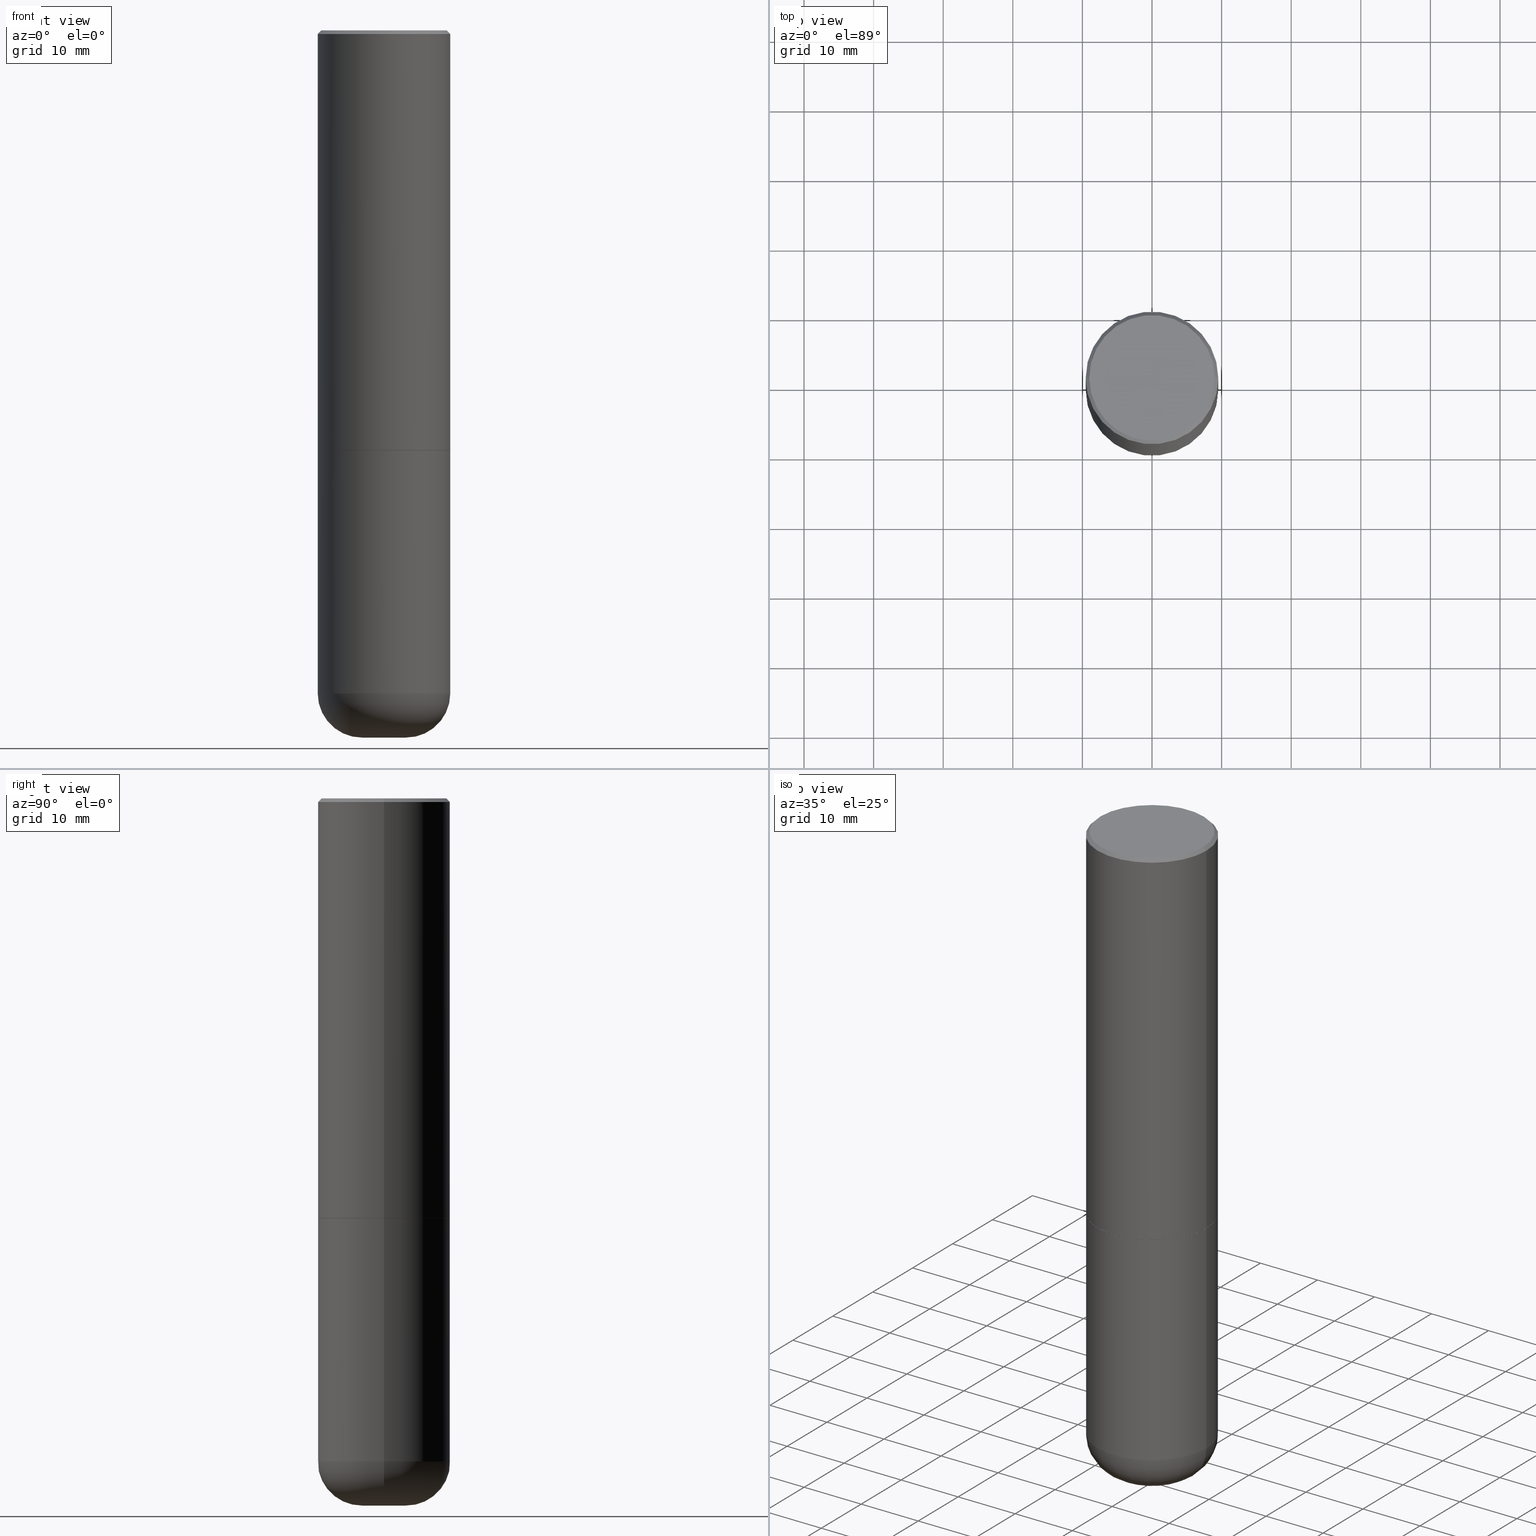
[diagram: canonical four-view strip — front | top / right | iso, engineering-drawing reading convention]
A machine part, canonical four-view strip (front | top / right | iso — engineering-drawing reading convention). The complete STEP part file that produces these views, byte-faithful:
ISO-10303-21;
HEADER;
FILE_DESCRIPTION (( 'STEP AP203' ),
    '1' );
FILE_NAME ('35634.STEP',
    '2022-11-02T20:31:57',
    ( '' ),
    ( '' ),
    'SwSTEP 2.0',
    'SolidWorks 2022',
    '' );
FILE_SCHEMA (( 'CONFIG_CONTROL_DESIGN' ));
ENDSEC;

DATA;
#1 = DIRECTION ( 'NONE',  ( -1.000000000000000000, 6.982962677686260400E-15, 0.000000000000000000 ) ) ;
#2 = APPROVAL_DATE_TIME ( #310, #217 ) ;
#3 = ORIENTED_EDGE ( 'NONE', *, *, #355, .T. ) ;
#4 = CONICAL_SURFACE ( 'NONE', #179, 0.3749999999999991673, 0.7853981633974445042 ) ;
#5 = ORIENTED_EDGE ( 'NONE', *, *, #201, .T. ) ;
#6 = ORIENTED_EDGE ( 'NONE', *, *, #381, .F. ) ;
#7 = CC_DESIGN_APPROVAL ( #312, ( #264 ) ) ;
#8 = FACE_OUTER_BOUND ( 'NONE', #154, .T. ) ;
#9 = AXIS2_PLACEMENT_3D ( 'NONE', #378, #37, #445 ) ;
#10 = PERSON_AND_ORGANIZATION ( #182, #33 ) ;
#11 = ORIENTED_EDGE ( 'NONE', *, *, #36, .F. ) ;
#12 = LINE ( 'NONE', #265, #234 ) ;
#13 = ORIENTED_EDGE ( 'NONE', *, *, #488, .T. ) ;
#14 = CC_DESIGN_PERSON_AND_ORGANIZATION_ASSIGNMENT ( #347, #180, ( #262 ) ) ;
#15 = DIRECTION ( 'NONE',  ( -0.7071067811864267805, 7.493145998869918709E-15, 0.7071067811866682540 ) ) ;
#16 = DIRECTION ( 'NONE',  ( -2.445468806185136597E-29, 3.491481338843145583E-15, 1.000000000000000000 ) ) ;
#17 = PRODUCT_DEFINITION_FORMATION_WITH_SPECIFIED_SOURCE ( 'ANY', '', #262, .NOT_KNOWN. ) ;
#18 = AXIS2_PLACEMENT_3D ( 'NONE', #294, #44, #419 ) ;
#19 = VERTEX_POINT ( 'NONE', #246 ) ;
#20 = DIRECTION ( 'NONE',  ( -6.982962677686266711E-15, -1.000000000000000000, 3.491481338843145583E-15 ) ) ;
#21 = ORIENTED_EDGE ( 'NONE', *, *, #349, .F. ) ;
#22 = ORIENTED_EDGE ( 'NONE', *, *, #169, .T. ) ;
#23 = DIRECTION ( 'NONE',  ( 2.445468806185136597E-29, -3.491481338843145583E-15, -1.000000000000000000 ) ) ;
#24 = ORIENTED_EDGE ( 'NONE', *, *, #59, .T. ) ;
#25 = EDGE_LOOP ( 'NONE', ( #311, #475, #198, #471 ) ) ;
#26 = DIRECTION ( 'NONE',  ( -2.438088387897960049E-29, 3.491481338843145188E-15, 1.000000000000000000 ) ) ;
#27 = CLOSED_SHELL ( 'NONE', ( #364, #160, #460, #233, #453, #479, #398, #171, #241 ) ) ;
#28 = VECTOR ( 'NONE', #251, 39.37007874015748854 ) ;
#29 = DIRECTION ( 'NONE',  ( -0.9999619230641714207, 6.952228252019235511E-15, -0.008726535498355246501 ) ) ;
#30 = EDGE_CURVE ( 'NONE', #200, #158, #305, .T. ) ;
#31 = CARTESIAN_POINT ( 'NONE',  ( 5.807988414689700538E-29, -8.292268179752471696E-15, -2.375000000000000000 ) ) ;
#32 = CARTESIAN_POINT ( 'NONE',  ( 9.781875224740545266E-29, -1.396592535537258075E-14, -3.999999999999999556 ) ) ;
#33 = ORGANIZATION ( 'UNSPECIFIED', 'UNSPECIFIED', '' ) ;
#34 = CONICAL_SURFACE ( 'NONE', #93, 0.3739999999999999991, 0.7853981633972775267 ) ;
#35 = CARTESIAN_POINT ( 'NONE',  ( 0.3749999999999999445, -2.618611004132349622E-15, 1.828566290923475642E-29 ) ) ;
#36 = EDGE_CURVE ( 'NONE', #158, #200, #213, .T. ) ;
#37 = DIRECTION ( 'NONE',  ( -2.445468806185136597E-29, 3.491481338843145583E-15, 1.000000000000000000 ) ) ;
#38 = CC_DESIGN_PERSON_AND_ORGANIZATION_ASSIGNMENT ( #10, #52, ( #321 ) ) ;
#39 = CARTESIAN_POINT ( 'NONE',  ( -1.043851414335219820E-46, 1.490343170380447200E-32, 4.268512490100411279E-18 ) ) ;
#40 = CARTESIAN_POINT ( 'NONE',  ( 4.890937612370324831E-31, -6.982962677686364332E-17, -0.02000000000000020858 ) ) ;
#41 = DIRECTION ( 'NONE',  ( -1.000000000000000000, 6.982962677686257244E-15, 0.000000000000000000 ) ) ;
#42 = AXIS2_PLACEMENT_3D ( 'NONE', #376, #220, #41 ) ;
#43 = DATE_AND_TIME ( #48, #78 ) ;
#44 = DIRECTION ( 'NONE',  ( 2.438088387897960049E-29, -3.491481338843145188E-15, -1.000000000000000000 ) ) ;
#45 = EDGE_CURVE ( 'NONE', #318, #468, #272, .T. ) ;
#46 = APPROVAL_STATUS ( 'not_yet_approved' ) ;
#47 = ORIENTED_EDGE ( 'NONE', *, *, #131, .F. ) ;
#48 = CALENDAR_DATE ( 2022, 2, 11 ) ;
#49 = AXIS2_PLACEMENT_3D ( 'NONE', #91, #435, #248 ) ;
#50 = ORIENTED_EDGE ( 'NONE', *, *, #45, .T. ) ;
#51 = DIRECTION ( 'NONE',  ( -2.445468806185136597E-29, 3.491481338843145583E-15, 1.000000000000000000 ) ) ;
#52 = PERSON_AND_ORGANIZATION_ROLE ( 'classification_officer' ) ;
#53 = LINE ( 'NONE', #360, #383 ) ;
#54 = EDGE_LOOP ( 'NONE', ( #47, #151, #289, #462 ) ) ;
#55 = DIRECTION ( 'NONE',  ( 7.105427357601001859E-15, 1.000000000000000000, -3.491481338843145583E-15 ) ) ;
#56 = AXIS2_PLACEMENT_3D ( 'NONE', #62, #23, #216 ) ;
#57 = VECTOR ( 'NONE', #302, 39.37007874015748143 ) ;
#58 = CARTESIAN_POINT ( 'NONE',  ( 0.08282086612540810744, -1.453289902993237186E-14, -3.999650947105539256 ) ) ;
#59 = EDGE_CURVE ( 'NONE', #468, #134, #293, .T. ) ;
#60 = DIRECTION ( 'NONE',  ( -2.445468806185136597E-29, 3.491481338843145583E-15, 1.000000000000000000 ) ) ;
#61 = DIRECTION ( 'NONE',  ( 1.000000000000000000, -6.982962677686266711E-15, 0.000000000000000000 ) ) ;
#62 = CARTESIAN_POINT ( 'NONE',  ( 9.781021626775434250E-29, -1.396470664370530441E-14, -3.999650947105539256 ) ) ;
#63 = CARTESIAN_POINT ( 'NONE',  ( 0.1228183661254082099, -1.482356142216071167E-14, -3.999999999999999556 ) ) ;
#64 = TOROIDAL_SURFACE ( 'NONE', #384, 0.1250000000000003053, 0.2500000000000001110 ) ;
#65 = CARTESIAN_POINT ( 'NONE',  ( 0.000000000000000000, 0.000000000000000000, 0.000000000000000000 ) ) ;
#66 = EDGE_LOOP ( 'NONE', ( #232, #117 ) ) ;
#67 = CARTESIAN_POINT ( 'NONE',  ( 0.000000000000000000, 0.000000000000000000, 0.000000000000000000 ) ) ;
#68 = LINE ( 'NONE', #219, #71 ) ;
#69 = DIRECTION ( 'NONE',  ( -2.445468806185136597E-29, 3.491481338843145583E-15, 1.000000000000000000 ) ) ;
#70 = EDGE_CURVE ( 'NONE', #209, #128, #343, .T. ) ;
#71 = VECTOR ( 'NONE', #146, 39.37007874015748143 ) ;
#72 = CARTESIAN_POINT ( 'NONE',  ( 0.000000000000000000, 0.000000000000000000, 0.000000000000000000 ) ) ;
#73 = AXIS2_PLACEMENT_3D ( 'NONE', #65, #372, #168 ) ;
#74 = PERSON_AND_ORGANIZATION_ROLE ( 'creator' ) ;
#75 = AXIS2_PLACEMENT_3D ( 'NONE', #247, #99, #448 ) ;
#76 = CARTESIAN_POINT ( 'NONE',  ( 9.170531302183962062E-29, -1.309308825688951538E-14, -3.750009519233956645 ) ) ;
#77 = ADVANCED_FACE ( 'NONE', ( #368 ), #142, .F. ) ;
#78 = LOCAL_TIME ( 16, 31, 57.00000000000000000, #150 ) ;
#79 = LINE ( 'NONE', #109, #57 ) ;
#80 = VECTOR ( 'NONE', #314, 39.37007874015748143 ) ;
#81 = APPROVAL_DATE_TIME ( #43, #111 ) ;
#82 = MANIFOLD_SOLID_BREP ( 'Body-Move/Copy2[2]', #163 ) ;
#83 = EDGE_CURVE ( 'NONE', #134, #84, #149, .T. ) ;
#84 = VERTEX_POINT ( 'NONE', #63 ) ;
#85 = ADVANCED_FACE ( 'NONE', ( #214 ), #178, .T. ) ;
#86 = APPROVAL_ROLE ( '' ) ;
#87 = VECTOR ( 'NONE', #403, 39.37007874015748854 ) ;
#88 = DIRECTION ( 'NONE',  ( 1.000000000000000000, -6.982962677686266711E-15, 0.000000000000000000 ) ) ;
#89 = ORIENTED_EDGE ( 'NONE', *, *, #36, .T. ) ;
#90 = ORIENTED_EDGE ( 'NONE', *, *, #30, .F. ) ;
#91 = CARTESIAN_POINT ( 'NONE',  ( 4.890937612370324831E-31, -6.982962677686364332E-17, -0.02000000000000020858 ) ) ;
#92 = ORIENTED_EDGE ( 'NONE', *, *, #381, .T. ) ;
#93 = AXIS2_PLACEMENT_3D ( 'NONE', #105, #254, #135 ) ;
#94 = CARTESIAN_POINT ( 'NONE',  ( 5.807988414689700538E-29, -8.292268179752471696E-15, -2.375000000000000000 ) ) ;
#95 = CARTESIAN_POINT ( 'NONE',  ( -0.1228183661254082099, -1.176090068723919405E-14, -3.999999999999999556 ) ) ;
#96 = CARTESIAN_POINT ( 'NONE',  ( 2.618611004132408392E-15, 0.3749999999999917843, -2.375000000000001332 ) ) ;
#97 = ORIENTED_EDGE ( 'NONE', *, *, #45, .F. ) ;
#98 = EDGE_CURVE ( 'NONE', #209, #307, #326, .T. ) ;
#99 = DIRECTION ( 'NONE',  ( -2.445468806185136597E-29, 3.491481338843145583E-15, 1.000000000000000000 ) ) ;
#100 =( CONVERSION_BASED_UNIT ( 'INCH', #130 ) LENGTH_UNIT ( ) NAMED_UNIT ( #155 ) );
#101 = CARTESIAN_POINT ( 'NONE',  ( 5.807988414689699417E-29, -8.292268179752470118E-15, -2.375000000000000000 ) ) ;
#102 = AXIS2_PLACEMENT_3D ( 'NONE', #144, #226, #186 ) ;
#103 = DIRECTION ( 'NONE',  ( -2.445468806185136597E-29, 3.491481338843145583E-15, 1.000000000000000000 ) ) ;
#104 = VERTEX_POINT ( 'NONE', #450 ) ;
#105 = CARTESIAN_POINT ( 'NONE',  ( 5.807988414689700538E-29, -8.292268179752471696E-15, -2.375000000000000000 ) ) ;
#106 = DIRECTION ( 'NONE',  ( -1.000000000000000000, 6.982962677686266711E-15, 0.000000000000000000 ) ) ;
#107 = VECTOR ( 'NONE', #401, 39.37007874015748854 ) ;
#108 = AXIS2_PLACEMENT_3D ( 'NONE', #40, #188, #340 ) ;
#109 = CARTESIAN_POINT ( 'NONE',  ( 0.3749999999999995559, -2.618611004132346467E-15, 1.828566290923473680E-29 ) ) ;
#110 = APPROVAL_ROLE ( '' ) ;
#111 = APPROVAL ( #299, 'UNSPECIFIED' ) ;
#112 = DIRECTION ( 'NONE',  ( -2.445468806185136597E-29, 3.491481338843145583E-15, 1.000000000000000000 ) ) ;
#113 = LOCAL_TIME ( 16, 31, 57.00000000000000000, #313 ) ;
#114 = CARTESIAN_POINT ( 'NONE',  ( 5.805542945883513814E-29, -8.288776698413627111E-15, -2.373999999999999666 ) ) ;
#115 = CIRCLE ( 'NONE', #456, 0.2500000000000000555 ) ;
#116 = ADVANCED_FACE ( 'NONE', ( #476 ), #34, .T. ) ;
#117 = ORIENTED_EDGE ( 'NONE', *, *, #225, .F. ) ;
#118 = ADVANCED_FACE ( 'NONE', ( #221 ), #288, .T. ) ;
#119 = DIRECTION ( 'NONE',  ( 1.000000000000000000, -6.982962677686260400E-15, 0.000000000000000000 ) ) ;
#120 = AXIS2_PLACEMENT_3D ( 'NONE', #245, #207, #277 ) ;
#121 = ORIENTED_EDGE ( 'NONE', *, *, #332, .F. ) ;
#122 = CIRCLE ( 'NONE', #283, 0.1228183661254082099 ) ;
#123 = SHAPE_DEFINITION_REPRESENTATION ( #193, #218 ) ;
#124 = CARTESIAN_POINT ( 'NONE',  ( 9.781875224740545266E-29, -1.396592535537258075E-14, -3.999999999999999556 ) ) ;
#125 = EDGE_LOOP ( 'NONE', ( #316, #215, #350, #275 ) ) ;
#126 = CARTESIAN_POINT ( 'NONE',  ( 0.000000000000000000, 0.000000000000000000, 0.000000000000000000 ) ) ;
#127 = CARTESIAN_POINT ( 'NONE',  ( -0.08282086612540810744, -1.338637162661792959E-14, -3.999650947105539256 ) ) ;
#128 = VERTEX_POINT ( 'NONE', #137 ) ;
#129 = EDGE_CURVE ( 'NONE', #190, #307, #437, .T. ) ;
#130 = LENGTH_MEASURE_WITH_UNIT ( LENGTH_MEASURE( 0.02539999999999999897 ), #442 );
#131 = EDGE_CURVE ( 'NONE', #19, #307, #174, .T. ) ;
#132 = DIRECTION ( 'NONE',  ( -2.445468806185136597E-29, 3.491481338843145583E-15, 1.000000000000000000 ) ) ;
#133 = FACE_OUTER_BOUND ( 'NONE', #379, .T. ) ;
#134 = VERTEX_POINT ( 'NONE', #95 ) ;
#135 = DIRECTION ( 'NONE',  ( 1.000000000000000000, -6.982962677686268288E-15, 0.000000000000000000 ) ) ;
#136 = LINE ( 'NONE', #175, #107 ) ;
#137 = CARTESIAN_POINT ( 'NONE',  ( 0.3549999999999990941, -2.538996582575035132E-15, 4.268512490117958041E-18 ) ) ;
#138 = TOROIDAL_SURFACE ( 'NONE', #481, 0.1250000000000003053, 0.2500000000000001110 ) ;
#139 = CARTESIAN_POINT ( 'NONE',  ( -0.3749999999999991673, 2.548781377355480407E-15, -0.02000000000000020858 ) ) ;
#140 = ADVANCED_FACE ( 'NONE', ( #292 ), #362, .T. ) ;
#141 = CARTESIAN_POINT ( 'NONE',  ( -0.3549999999999990941, 2.513866563967049153E-15, 4.268512490082953109E-18 ) ) ;
#142 = PLANE ( 'NONE',  #279 ) ;
#143 = AXIS2_PLACEMENT_3D ( 'NONE', #101, #132, #183 ) ;
#144 = CARTESIAN_POINT ( 'NONE',  ( 9.781021626775434250E-29, -1.396470664370530441E-14, -3.999650947105539256 ) ) ;
#145 = PRODUCT_RELATED_PRODUCT_CATEGORY ( 'detail', '', ( #262 ) ) ;
#146 = DIRECTION ( 'NONE',  ( 0.7071067811864267805, -2.468850131080992517E-15, 0.7071067811866682540 ) ) ;
#147 = CARTESIAN_POINT ( 'NONE',  ( 0.3749999999999999445, -1.571169926102186224E-14, -3.750009519233956645 ) ) ;
#148 = EDGE_CURVE ( 'NONE', #433, #104, #68, .T. ) ;
#149 = CIRCLE ( 'NONE', #222, 0.1228183661254082099 ) ;
#150 = COORDINATED_UNIVERSAL_TIME_OFFSET ( 5, 0, .BEHIND. ) ;
#151 = ORIENTED_EDGE ( 'NONE', *, *, #346, .T. ) ;
#152 = DIRECTION ( 'NONE',  ( -2.445468806185136597E-29, 3.491481338843145583E-15, 1.000000000000000000 ) ) ;
#153 = AXIS2_PLACEMENT_3D ( 'NONE', #72, #482, #176 ) ;
#154 = EDGE_LOOP ( 'NONE', ( #351, #328, #3, #240 ) ) ;
#155 = DIMENSIONAL_EXPONENTS ( 1.000000000000000000, 0.000000000000000000, 0.000000000000000000, 0.000000000000000000, 0.000000000000000000, 0.000000000000000000, 0.000000000000000000 ) ;
#156 = APPLICATION_CONTEXT ( 'configuration controlled 3d designs of mechanical parts and assemblies' ) ;
#157 = PERSON_AND_ORGANIZATION ( #182, #33 ) ;
#158 = VERTEX_POINT ( 'NONE', #423 ) ;
#159 = DIRECTION ( 'NONE',  ( -1.000000000000000000, 7.105427357601001859E-15, 0.000000000000000000 ) ) ;
#160 = ADVANCED_FACE ( 'NONE', ( #464 ), #64, .T. ) ;
#161 = FACE_OUTER_BOUND ( 'NONE', #397, .T. ) ;
#162 = ORIENTED_EDGE ( 'NONE', *, *, #70, .T. ) ;
#163 = CLOSED_SHELL ( 'NONE', ( #140, #85, #282, #402, #118, #116, #77, #309 ) ) ;
#164 = CC_DESIGN_DATE_AND_TIME_ASSIGNMENT ( #231, #386, ( #321 ) ) ;
#165 = DIRECTION ( 'NONE',  ( 2.445468806185136597E-29, -3.491481338843145583E-15, -1.000000000000000000 ) ) ;
#166 = EDGE_LOOP ( 'NONE', ( #5, #367, #90, #425 ) ) ;
#167 = EDGE_LOOP ( 'NONE', ( #267, #22, #276, #432 ) ) ;
#168 = DIRECTION ( 'NONE',  ( 1.000000000000000000, -6.982962677686266711E-15, 4.876176775795935793E-29 ) ) ;
#169 = EDGE_CURVE ( 'NONE', #134, #206, #115, .T. ) ;
#170 = ORIENTED_EDGE ( 'NONE', *, *, #303, .T. ) ;
#171 = ADVANCED_FACE ( 'NONE', ( #8 ), #138, .T. ) ;
#172 = CYLINDRICAL_SURFACE ( 'NONE', #73, 0.3749999999999999445 ) ;
#173 = CC_DESIGN_APPROVAL ( #111, ( #17 ) ) ;
#174 = LINE ( 'NONE', #323, #345 ) ;
#175 = CARTESIAN_POINT ( 'NONE',  ( -0.08282086612540810744, -1.338637162661792959E-14, -3.999650947105539256 ) ) ;
#176 = DIRECTION ( 'NONE',  ( 1.000000000000000000, -6.982962677686265133E-15, 4.876176775795935793E-29 ) ) ;
#177 = DIRECTION ( 'NONE',  ( 1.000000000000000000, -6.982962677686257244E-15, 0.000000000000000000 ) ) ;
#178 = CYLINDRICAL_SURFACE ( 'NONE', #153, 0.3749999999999995559 ) ;
#179 = AXIS2_PLACEMENT_3D ( 'NONE', #230, #385, #106 ) ;
#180 = PERSON_AND_ORGANIZATION_ROLE ( 'design_owner' ) ;
#181 = FACE_OUTER_BOUND ( 'NONE', #478, .T. ) ;
#182 = PERSON ( 'UNSPECIFIED', 'UNSPECIFIED', 'UNSPECIFIED', ('UNSPECIFIED'), ('UNSPECIFIED'), ('UNSPECIFIED') ) ;
#183 = DIRECTION ( 'NONE',  ( 1.000000000000000000, -6.982962677686266711E-15, 0.000000000000000000 ) ) ;
#184 = CARTESIAN_POINT ( 'NONE',  ( 0.08282086612540810744, -1.453289902993237186E-14, -3.999650947105539256 ) ) ;
#185 = APPROVAL_STATUS ( 'not_yet_approved' ) ;
#186 = DIRECTION ( 'NONE',  ( 1.000000000000000000, -6.982962677686257244E-15, 0.000000000000000000 ) ) ;
#187 = AXIS2_PLACEMENT_3D ( 'NONE', #124, #165, #461 ) ;
#188 = DIRECTION ( 'NONE',  ( -2.445468806185136597E-29, 3.491481338843145583E-15, 1.000000000000000000 ) ) ;
#189 = EDGE_CURVE ( 'NONE', #84, #134, #122, .T. ) ;
#190 = VERTEX_POINT ( 'NONE', #337 ) ;
#191 = CARTESIAN_POINT ( 'NONE',  ( -0.3749999999999999445, -8.028142959220617840E-15, -3.750009519233956645 ) ) ;
#192 = UNCERTAINTY_MEASURE_WITH_UNIT (LENGTH_MEASURE( 1.000000000000000082E-05 ), #100, 'distance_accuracy_value', 'NONE');
#193 = PRODUCT_DEFINITION_SHAPE ( 'NONE', 'NONE',  #264 ) ;
#194 = CALENDAR_DATE ( 2022, 2, 11 ) ;
#195 = ORIENTED_EDGE ( 'NONE', *, *, #208, .T. ) ;
#196 = CONICAL_SURFACE ( 'NONE', #49, 0.3749999999999991673, 0.7853981633974445042 ) ;
#197 = VECTOR ( 'NONE', #256, 39.37007874015748143 ) ;
#198 = ORIENTED_EDGE ( 'NONE', *, *, #148, .T. ) ;
#199 = ORIENTED_EDGE ( 'NONE', *, *, #208, .F. ) ;
#200 = VERTEX_POINT ( 'NONE', #382 ) ;
#201 = EDGE_CURVE ( 'NONE', #239, #206, #399, .T. ) ;
#202 = EDGE_LOOP ( 'NONE', ( #411, #50, #24, #427 ) ) ;
#203 = FACE_OUTER_BOUND ( 'NONE', #125, .T. ) ;
#204 = ORIENTED_EDGE ( 'NONE', *, *, #439, .T. ) ;
#205 = CARTESIAN_POINT ( 'NONE',  ( 9.781875224740545266E-29, -1.396592535537258075E-14, -3.999999999999999556 ) ) ;
#206 = VERTEX_POINT ( 'NONE', #191 ) ;
#207 = DIRECTION ( 'NONE',  ( -2.445468806185136597E-29, 3.491481338843145583E-15, 1.000000000000000000 ) ) ;
#208 = EDGE_CURVE ( 'NONE', #128, #209, #440, .T. ) ;
#209 = VERTEX_POINT ( 'NONE', #141 ) ;
#210 = DIRECTION ( 'NONE',  ( 1.000000000000000000, -6.982962677686268288E-15, 0.000000000000000000 ) ) ;
#211 = EDGE_LOOP ( 'NONE', ( #361, #436, #97 ) ) ;
#212 = LOCAL_TIME ( 16, 31, 57.00000000000000000, #459 ) ;
#213 = CIRCLE ( 'NONE', #492, 0.3750000000000000555 ) ;
#214 = FACE_OUTER_BOUND ( 'NONE', #274, .T. ) ;
#215 = ORIENTED_EDGE ( 'NONE', *, *, #335, .T. ) ;
#216 = DIRECTION ( 'NONE',  ( -1.000000000000000000, 6.982962677686257244E-15, 0.000000000000000000 ) ) ;
#217 = APPROVAL ( #46, 'UNSPECIFIED' ) ;
#218 = ADVANCED_BREP_SHAPE_REPRESENTATION ( '35634', ( #418, #82, #342 ), #417 ) ;
#219 = CARTESIAN_POINT ( 'NONE',  ( 0.3739999999999999991, -1.090389622120713570E-14, -2.375000000000000000 ) ) ;
#220 = DIRECTION ( 'NONE',  ( 2.445468806185136597E-29, -3.491481338843145583E-15, -1.000000000000000000 ) ) ;
#221 = FACE_OUTER_BOUND ( 'NONE', #54, .T. ) ;
#222 = AXIS2_PLACEMENT_3D ( 'NONE', #32, #334, #285 ) ;
#223 = APPROVAL_DATE_TIME ( #255, #312 ) ;
#224 = CARTESIAN_POINT ( 'NONE',  ( 9.773948919231959762E-29, -1.395460869179494729E-14, -3.996758778730467032 ) ) ;
#225 = EDGE_CURVE ( 'NONE', #466, #433, #407, .T. ) ;
#226 = DIRECTION ( 'NONE',  ( -2.445468806185136597E-29, 3.491481338843145583E-15, 1.000000000000000000 ) ) ;
#227 = PLANE ( 'NONE',  #18 ) ;
#228 = CIRCLE ( 'NONE', #375, 0.2500000000000000555 ) ;
#229 = CIRCLE ( 'NONE', #291, 0.3750000000000000555 ) ;
#230 = CARTESIAN_POINT ( 'NONE',  ( 4.890937612370324831E-31, -6.982962677686364332E-17, -0.02000000000000020858 ) ) ;
#231 = DATE_AND_TIME ( #431, #113 ) ;
#232 = ORIENTED_EDGE ( 'NONE', *, *, #488, .F. ) ;
#233 = ADVANCED_FACE ( 'NONE', ( #181 ), #250, .F. ) ;
#234 = VECTOR ( 'NONE', #273, 39.37007874015748854 ) ;
#235 = LINE ( 'NONE', #394, #80 ) ;
#236 = AXIS2_PLACEMENT_3D ( 'NONE', #76, #112, #259 ) ;
#237 = VERTEX_POINT ( 'NONE', #224 ) ;
#238 = DIRECTION ( 'NONE',  ( 0.9999619230641714207, -6.890705306874777996E-15, -0.008726535498355246501 ) ) ;
#239 = VERTEX_POINT ( 'NONE', #147 ) ;
#240 = ORIENTED_EDGE ( 'NONE', *, *, #439, .F. ) ;
#241 = ADVANCED_FACE ( 'NONE', ( #348 ), #354, .F. ) ;
#242 = FACE_OUTER_BOUND ( 'NONE', #166, .T. ) ;
#243 = AXIS2_PLACEMENT_3D ( 'NONE', #422, #452, #1 ) ;
#244 = CC_DESIGN_PERSON_AND_ORGANIZATION_ASSIGNMENT ( #416, #74, ( #264 ) ) ;
#245 = CARTESIAN_POINT ( 'NONE',  ( 9.170531302183962062E-29, -1.309308825688951538E-14, -3.750009519233956645 ) ) ;
#246 = CARTESIAN_POINT ( 'NONE',  ( -0.3750000000000000555, -1.514767903494864183E-15, -2.373999999999999666 ) ) ;
#247 = CARTESIAN_POINT ( 'NONE',  ( -1.043851414335219820E-46, 1.490343170380447200E-32, 4.268512490100411279E-18 ) ) ;
#248 = DIRECTION ( 'NONE',  ( -1.000000000000000000, 6.982962677686266711E-15, 0.000000000000000000 ) ) ;
#249 = CC_DESIGN_APPROVAL ( #217, ( #321 ) ) ;
#250 = CONICAL_SURFACE ( 'NONE', #42, 0.08282086612540810744, 1.535889741755012805 ) ;
#251 = DIRECTION ( 'NONE',  ( -0.7071067811865447972, 2.468850131082228662E-15, -0.7071067811865501263 ) ) ;
#252 = CC_DESIGN_PERSON_AND_ORGANIZATION_ASSIGNMENT ( #359, #424, ( #17 ) ) ;
#253 = DIRECTION ( 'NONE',  ( 1.000000000000000000, -6.982962677686268288E-15, 0.000000000000000000 ) ) ;
#254 = DIRECTION ( 'NONE',  ( -2.445468806185136597E-29, 3.491481338843145583E-15, 1.000000000000000000 ) ) ;
#255 = DATE_AND_TIME ( #336, #331 ) ;
#256 = DIRECTION ( 'NONE',  ( -2.445468806185136877E-29, 3.491481338843145188E-15, 1.000000000000000000 ) ) ;
#257 = AXIS2_PLACEMENT_3D ( 'NONE', #295, #329, #338 ) ;
#258 = PERSON_AND_ORGANIZATION ( #182, #33 ) ;
#259 = DIRECTION ( 'NONE',  ( 1.000000000000000000, -6.982962677686263555E-15, 0.000000000000000000 ) ) ;
#260 = DIRECTION ( 'NONE',  ( 1.000000000000000000, -6.982962677686268288E-15, 0.000000000000000000 ) ) ;
#261 = AXIS2_PLACEMENT_3D ( 'NONE', #477, #286, #473 ) ;
#262 = PRODUCT ( '35634', '35634', '', ( #451 ) ) ;
#263 = AXIS2_PLACEMENT_3D ( 'NONE', #39, #69, #300 ) ;
#264 = PRODUCT_DEFINITION ( 'UNKNOWN', '', #17, #389 ) ;
#265 = CARTESIAN_POINT ( 'NONE',  ( 0.3749999999999991673, -2.642516375941182112E-15, -0.02000000000000020858 ) ) ;
#266 = CARTESIAN_POINT ( 'NONE',  ( 9.170531302183962062E-29, -1.309308825688951538E-14, -3.750009519233956645 ) ) ;
#267 = ORIENTED_EDGE ( 'NONE', *, *, #189, .T. ) ;
#268 = EDGE_CURVE ( 'NONE', #104, #190, #79, .T. ) ;
#269 = CC_DESIGN_SECURITY_CLASSIFICATION ( #321, ( #17 ) ) ;
#270 = VECTOR ( 'NONE', #29, 39.37007874015748854 ) ;
#271 = PERSON_AND_ORGANIZATION ( #182, #33 ) ;
#272 = CIRCLE ( 'NONE', #490, 0.08282086612540810744 ) ;
#273 = DIRECTION ( 'NONE',  ( 0.7071067811865447972, -7.319954787623245001E-15, -0.7071067811865501263 ) ) ;
#274 = EDGE_LOOP ( 'NONE', ( #370, #409, #486, #365 ) ) ;
#275 = ORIENTED_EDGE ( 'NONE', *, *, #59, .F. ) ;
#276 = ORIENTED_EDGE ( 'NONE', *, *, #201, .F. ) ;
#277 = DIRECTION ( 'NONE',  ( 1.000000000000000000, -6.982962677686263555E-15, 0.000000000000000000 ) ) ;
#278 = EDGE_LOOP ( 'NONE', ( #162, #195 ) ) ;
#279 = AXIS2_PLACEMENT_3D ( 'NONE', #31, #26, #414 ) ;
#280 = CONICAL_SURFACE ( 'NONE', #187, 0.1228183661254082099, 1.562069680534943661 ) ;
#281 = PLANE ( 'NONE',  #438 ) ;
#282 = ADVANCED_FACE ( 'NONE', ( #304 ), #4, .T. ) ;
#283 = AXIS2_PLACEMENT_3D ( 'NONE', #205, #319, #119 ) ;
#284 = DIRECTION ( 'NONE',  ( 1.000000000000000000, -6.982962677686266711E-15, 4.876176775795935793E-29 ) ) ;
#285 = DIRECTION ( 'NONE',  ( 1.000000000000000000, -6.982962677686260400E-15, 0.000000000000000000 ) ) ;
#286 = DIRECTION ( 'NONE',  ( -2.445468806185136597E-29, 3.491481338843145583E-15, 1.000000000000000000 ) ) ;
#287 = ORIENTED_EDGE ( 'NONE', *, *, #457, .F. ) ;
#288 = CYLINDRICAL_SURFACE ( 'NONE', #257, 0.3749999999999995559 ) ;
#289 = ORIENTED_EDGE ( 'NONE', *, *, #268, .T. ) ;
#290 = CIRCLE ( 'NONE', #120, 0.3749999999999999445 ) ;
#291 = AXIS2_PLACEMENT_3D ( 'NONE', #114, #152, #88 ) ;
#292 = FACE_OUTER_BOUND ( 'NONE', #443, .T. ) ;
#293 = LINE ( 'NONE', #373, #270 ) ;
#294 = CARTESIAN_POINT ( 'NONE',  ( 2.478951750578617898E-15, 0.3549999999999990941, -1.237341619044263272E-15 ) ) ;
#295 = CARTESIAN_POINT ( 'NONE',  ( 0.000000000000000000, 0.000000000000000000, 0.000000000000000000 ) ) ;
#296 = COORDINATED_UNIVERSAL_TIME_OFFSET ( 5, 0, .BEHIND. ) ;
#297 = CARTESIAN_POINT ( 'NONE',  ( 5.807988414689700538E-29, -8.292268179752471696E-15, -2.375000000000000000 ) ) ;
#298 = CONICAL_SURFACE ( 'NONE', #56, 0.08282086612540810744, 1.535889741755012805 ) ;
#299 = APPROVAL_STATUS ( 'not_yet_approved' ) ;
#300 = DIRECTION ( 'NONE',  ( 1.000000000000000000, -6.982962677686265133E-15, 4.876231632512000515E-29 ) ) ;
#301 = APPROVAL_ROLE ( '' ) ;
#302 = DIRECTION ( 'NONE',  ( -2.445468806185136877E-29, 3.491481338843145188E-15, 1.000000000000000000 ) ) ;
#303 = EDGE_CURVE ( 'NONE', #239, #200, #413, .T. ) ;
#304 = FACE_OUTER_BOUND ( 'NONE', #429, .T. ) ;
#305 = CIRCLE ( 'NONE', #143, 0.3750000000000000555 ) ;
#306 = CARTESIAN_POINT ( 'NONE',  ( 0.1250000000000003053, -1.396595859160030030E-14, -3.750009519233956645 ) ) ;
#307 = VERTEX_POINT ( 'NONE', #484 ) ;
#308 = CARTESIAN_POINT ( 'NONE',  ( 9.170531302183962062E-29, -1.309308825688951538E-14, -3.750009519233956645 ) ) ;
#309 = ADVANCED_FACE ( 'NONE', ( #420 ), #227, .F. ) ;
#310 = DATE_AND_TIME ( #194, #212 ) ;
#311 = ORIENTED_EDGE ( 'NONE', *, *, #387, .F. ) ;
#312 = APPROVAL ( #185, 'UNSPECIFIED' ) ;
#313 = COORDINATED_UNIVERSAL_TIME_OFFSET ( 5, 0, .BEHIND. ) ;
#314 = DIRECTION ( 'NONE',  ( -2.445468806185136877E-29, 3.491481338843145188E-15, 1.000000000000000000 ) ) ;
#315 = ORIENTED_EDGE ( 'NONE', *, *, #324, .T. ) ;
#316 = ORIENTED_EDGE ( 'NONE', *, *, #332, .T. ) ;
#317 = DIRECTION ( 'NONE',  ( 0.000000000000000000, 0.000000000000000000, 1.000000000000000000 ) ) ;
#318 = VERTEX_POINT ( 'NONE', #184 ) ;
#319 = DIRECTION ( 'NONE',  ( -2.445468806185136597E-29, 3.491481338843145583E-15, 1.000000000000000000 ) ) ;
#320 = CYLINDRICAL_SURFACE ( 'NONE', #415, 0.3749999999999999445 ) ;
#321 = SECURITY_CLASSIFICATION ( '', '', #357 ) ;
#322 = CARTESIAN_POINT ( 'NONE',  ( 0.3739999999999999991, -1.090389622120713570E-14, -2.375000000000000000 ) ) ;
#323 = CARTESIAN_POINT ( 'NONE',  ( -0.3749999999999995559, 2.664535259100372542E-15, -1.844600658845587356E-29 ) ) ;
#324 = EDGE_CURVE ( 'NONE', #307, #190, #472, .T. ) ;
#325 =( NAMED_UNIT ( * ) SI_UNIT ( $, .STERADIAN. ) SOLID_ANGLE_UNIT ( ) );
#326 = LINE ( 'NONE', #139, #28 ) ;
#327 = FACE_OUTER_BOUND ( 'NONE', #211, .T. ) ;
#328 = ORIENTED_EDGE ( 'NONE', *, *, #83, .T. ) ;
#329 = DIRECTION ( 'NONE',  ( -2.445468806185136597E-29, 3.491481338843145583E-15, 1.000000000000000000 ) ) ;
#330 = COORDINATED_UNIVERSAL_TIME_OFFSET ( 5, 0, .BEHIND. ) ;
#331 = LOCAL_TIME ( 16, 31, 57.00000000000000000, #330 ) ;
#332 = EDGE_CURVE ( 'NONE', #468, #318, #392, .T. ) ;
#333 = AXIS2_PLACEMENT_3D ( 'NONE', #474, #103, #253 ) ;
#334 = DIRECTION ( 'NONE',  ( -2.445468806185136597E-29, 3.491481338843145583E-15, 1.000000000000000000 ) ) ;
#335 = EDGE_CURVE ( 'NONE', #318, #84, #341, .T. ) ;
#336 = CALENDAR_DATE ( 2022, 2, 11 ) ;
#337 = CARTESIAN_POINT ( 'NONE',  ( 0.3749999999999991673, -2.642516375941182112E-15, -0.02000000000000020858 ) ) ;
#338 = DIRECTION ( 'NONE',  ( 1.000000000000000000, -6.982962677686265133E-15, 4.876176775795935793E-29 ) ) ;
#339 = CALENDAR_DATE ( 2022, 2, 11 ) ;
#340 = DIRECTION ( 'NONE',  ( 1.000000000000000000, -6.982962677686266711E-15, 0.000000000000000000 ) ) ;
#341 = LINE ( 'NONE', #428, #352 ) ;
#342 = AXIS2_PLACEMENT_3D ( 'NONE', #67, #317, #421 ) ;
#343 = CIRCLE ( 'NONE', #75, 0.3549999999999990941 ) ;
#344 = APPLICATION_CONTEXT ( 'configuration controlled 3d designs of mechanical parts and assemblies' ) ;
#345 = VECTOR ( 'NONE', #408, 39.37007874015748143 ) ;
#346 = EDGE_CURVE ( 'NONE', #19, #104, #229, .T. ) ;
#347 = PERSON_AND_ORGANIZATION ( #182, #33 ) ;
#348 = FACE_OUTER_BOUND ( 'NONE', #202, .T. ) ;
#349 = EDGE_CURVE ( 'NONE', #206, #158, #235, .T. ) ;
#350 = ORIENTED_EDGE ( 'NONE', *, *, #83, .F. ) ;
#351 = ORIENTED_EDGE ( 'NONE', *, *, #169, .F. ) ;
#352 = VECTOR ( 'NONE', #238, 39.37007874015748854 ) ;
#353 = CIRCLE ( 'NONE', #261, 0.3750000000000000555 ) ;
#354 = CONICAL_SURFACE ( 'NONE', #243, 0.1228183661254082099, 1.562069680534943661 ) ;
#355 = EDGE_CURVE ( 'NONE', #84, #239, #228, .T. ) ;
#356 = ORIENTED_EDGE ( 'NONE', *, *, #129, .T. ) ;
#357 = SECURITY_CLASSIFICATION_LEVEL ( 'unclassified' ) ;
#358 = DIRECTION ( 'NONE',  ( 1.000000000000000000, -6.982962677686269077E-15, 0.000000000000000000 ) ) ;
#359 = PERSON_AND_ORGANIZATION ( #182, #33 ) ;
#360 = CARTESIAN_POINT ( 'NONE',  ( -0.3739999999999999991, -5.634838348009696218E-15, -2.375000000000000000 ) ) ;
#361 = ORIENTED_EDGE ( 'NONE', *, *, #426, .F. ) ;
#362 = CONICAL_SURFACE ( 'NONE', #333, 0.3739999999999999991, 0.7853981633972775267 ) ;
#363 = ORIENTED_EDGE ( 'NONE', *, *, #30, .T. ) ;
#364 = ADVANCED_FACE ( 'NONE', ( #203 ), #280, .F. ) ;
#365 = ORIENTED_EDGE ( 'NONE', *, *, #268, .F. ) ;
#366 = LINE ( 'NONE', #58, #87 ) ;
#367 = ORIENTED_EDGE ( 'NONE', *, *, #349, .T. ) ;
#368 = FACE_OUTER_BOUND ( 'NONE', #66, .T. ) ;
#369 =( NAMED_UNIT ( * ) PLANE_ANGLE_UNIT ( ) SI_UNIT ( $, .RADIAN. ) );
#370 = ORIENTED_EDGE ( 'NONE', *, *, #457, .T. ) ;
#371 = CARTESIAN_POINT ( 'NONE',  ( 5.807988414689699417E-29, -8.292268179752470118E-15, -2.375000000000000000 ) ) ;
#372 = DIRECTION ( 'NONE',  ( -2.445468806185136597E-29, 3.491481338843145583E-15, 1.000000000000000000 ) ) ;
#373 = CARTESIAN_POINT ( 'NONE',  ( -0.1228183661254082099, -1.310828928858444825E-14, -3.999999999999999556 ) ) ;
#374 = DIRECTION ( 'NONE',  ( -2.445468806185136597E-29, 3.491481338843145583E-15, 1.000000000000000000 ) ) ;
#375 = AXIS2_PLACEMENT_3D ( 'NONE', #306, #20, #358 ) ;
#376 = CARTESIAN_POINT ( 'NONE',  ( 9.781021626775434250E-29, -1.396470664370530441E-14, -3.999650947105539256 ) ) ;
#377 = CC_DESIGN_PERSON_AND_ORGANIZATION_ASSIGNMENT ( #271, #393, ( #17 ) ) ;
#378 = CARTESIAN_POINT ( 'NONE',  ( 4.890937612370324831E-31, -6.982962677686364332E-17, -0.02000000000000020858 ) ) ;
#379 = EDGE_LOOP ( 'NONE', ( #363, #89 ) ) ;
#380 = APPLICATION_PROTOCOL_DEFINITION ( 'international standard', 'config_control_design', 1994, #156 ) ;
#381 = EDGE_CURVE ( 'NONE', #128, #190, #12, .T. ) ;
#382 = CARTESIAN_POINT ( 'NONE',  ( 0.3750000000000000555, -1.091087918388482013E-14, -2.375000000000000000 ) ) ;
#383 = VECTOR ( 'NONE', #15, 39.37007874015748143 ) ;
#384 = AXIS2_PLACEMENT_3D ( 'NONE', #266, #51, #434 ) ;
#385 = DIRECTION ( 'NONE',  ( 2.445468806185136597E-29, -3.491481338843145583E-15, -1.000000000000000000 ) ) ;
#386 = DATE_TIME_ROLE ( 'classification_date' ) ;
#387 = EDGE_CURVE ( 'NONE', #466, #19, #53, .T. ) ;
#388 = EDGE_LOOP ( 'NONE', ( #6, #412, #470, #315 ) ) ;
#389 = DESIGN_CONTEXT ( 'detailed design', #156, 'design' ) ;
#390 = DIRECTION ( 'NONE',  ( 1.000000000000000000, -6.982962677686266711E-15, 4.883557194083113462E-29 ) ) ;
#391 = APPROVAL_PERSON_ORGANIZATION ( #258, #111, #110 ) ;
#392 = CIRCLE ( 'NONE', #102, 0.08282086612540810744 ) ;
#393 = PERSON_AND_ORGANIZATION_ROLE ( 'creator' ) ;
#394 = CARTESIAN_POINT ( 'NONE',  ( -0.3749999999999999445, 2.664535259100375303E-15, -1.844600658845589318E-29 ) ) ;
#395 = ORIENTED_EDGE ( 'NONE', *, *, #148, .F. ) ;
#396 = ORIENTED_EDGE ( 'NONE', *, *, #387, .T. ) ;
#397 = EDGE_LOOP ( 'NONE', ( #21, #204, #170, #11 ) ) ;
#398 = ADVANCED_FACE ( 'NONE', ( #161 ), #320, .T. ) ;
#399 = CIRCLE ( 'NONE', #236, 0.3749999999999999445 ) ;
#400 = FACE_OUTER_BOUND ( 'NONE', #388, .T. ) ;
#401 = DIRECTION ( 'NONE',  ( -0.9993908270190957621, 6.856857904024566726E-15, -0.03489949670249818670 ) ) ;
#402 = ADVANCED_FACE ( 'NONE', ( #400 ), #196, .T. ) ;
#403 = DIRECTION ( 'NONE',  ( 0.9993908270190957621, -6.978169709227531233E-15, -0.03489949670249818670 ) ) ;
#404 = ORIENTED_EDGE ( 'NONE', *, *, #426, .T. ) ;
#405 = DIRECTION ( 'NONE',  ( -2.445468806185136597E-29, 3.491481338843145583E-15, 1.000000000000000000 ) ) ;
#406 = APPROVAL_PERSON_ORGANIZATION ( #157, #217, #86 ) ;
#407 = CIRCLE ( 'NONE', #465, 0.3739999999999999991 ) ;
#408 = DIRECTION ( 'NONE',  ( -2.445468806185136877E-29, 3.491481338843145188E-15, 1.000000000000000000 ) ) ;
#409 = ORIENTED_EDGE ( 'NONE', *, *, #131, .T. ) ;
#410 = CARTESIAN_POINT ( 'NONE',  ( -0.1250000000000003053, -1.220490983718938699E-14, -3.750009519233956645 ) ) ;
#411 = ORIENTED_EDGE ( 'NONE', *, *, #335, .F. ) ;
#412 = ORIENTED_EDGE ( 'NONE', *, *, #70, .F. ) ;
#413 = LINE ( 'NONE', #35, #197 ) ;
#414 = DIRECTION ( 'NONE',  ( 1.000000000000000000, -6.982962677686265922E-15, 4.876176775795935793E-29 ) ) ;
#415 = AXIS2_PLACEMENT_3D ( 'NONE', #126, #467, #284 ) ;
#416 = PERSON_AND_ORGANIZATION ( #182, #33 ) ;
#417 =( GEOMETRIC_REPRESENTATION_CONTEXT ( 3 ) GLOBAL_UNCERTAINTY_ASSIGNED_CONTEXT ( ( #192 ) ) GLOBAL_UNIT_ASSIGNED_CONTEXT ( ( #100, #369, #325 ) ) REPRESENTATION_CONTEXT ( 'NONE', 'WORKASPACE' ) );
#418 = MANIFOLD_SOLID_BREP ( 'Body-Move/Copy2[1]', #27 ) ;
#419 = DIRECTION ( 'NONE',  ( -1.000000000000000000, 6.982962677686265922E-15, -4.876176775795935793E-29 ) ) ;
#420 = FACE_OUTER_BOUND ( 'NONE', #278, .T. ) ;
#421 = DIRECTION ( 'NONE',  ( 1.000000000000000000, 0.000000000000000000, 0.000000000000000000 ) ) ;
#422 = CARTESIAN_POINT ( 'NONE',  ( 9.781875224740545266E-29, -1.396592535537258075E-14, -3.999999999999999556 ) ) ;
#423 = CARTESIAN_POINT ( 'NONE',  ( -0.3750000000000000555, -8.028142959220617840E-15, -2.375000000000000000 ) ) ;
#424 = PERSON_AND_ORGANIZATION_ROLE ( 'design_supplier' ) ;
#425 = ORIENTED_EDGE ( 'NONE', *, *, #303, .F. ) ;
#426 = EDGE_CURVE ( 'NONE', #237, #318, #366, .T. ) ;
#427 = ORIENTED_EDGE ( 'NONE', *, *, #189, .F. ) ;
#428 = CARTESIAN_POINT ( 'NONE',  ( 0.1228183661254082099, -1.480852051026551656E-14, -3.999999999999999556 ) ) ;
#429 = EDGE_LOOP ( 'NONE', ( #199, #92, #356, #458 ) ) ;
#430 = AXIS2_PLACEMENT_3D ( 'NONE', #94, #60, #210 ) ;
#431 = CALENDAR_DATE ( 2022, 2, 11 ) ;
#432 = ORIENTED_EDGE ( 'NONE', *, *, #355, .F. ) ;
#433 = VERTEX_POINT ( 'NONE', #322 ) ;
#434 = DIRECTION ( 'NONE',  ( 1.000000000000000000, -6.982962677686266711E-15, 4.883557194083113462E-29 ) ) ;
#435 = DIRECTION ( 'NONE',  ( 2.445468806185136597E-29, -3.491481338843145583E-15, -1.000000000000000000 ) ) ;
#436 = ORIENTED_EDGE ( 'NONE', *, *, #485, .T. ) ;
#437 = CIRCLE ( 'NONE', #9, 0.3749999999999991673 ) ;
#438 = AXIS2_PLACEMENT_3D ( 'NONE', #96, #444, #441 ) ;
#439 = EDGE_CURVE ( 'NONE', #206, #239, #290, .T. ) ;
#440 = CIRCLE ( 'NONE', #263, 0.3549999999999990941 ) ;
#441 = DIRECTION ( 'NONE',  ( -1.000000000000000000, 6.982962677686265922E-15, -4.876176775795935793E-29 ) ) ;
#442 =( LENGTH_UNIT ( ) NAMED_UNIT ( * ) SI_UNIT ( $, .METRE. ) );
#443 = EDGE_LOOP ( 'NONE', ( #13, #396, #287, #395 ) ) ;
#444 = DIRECTION ( 'NONE',  ( 2.438088387897960049E-29, -3.491481338843145188E-15, -1.000000000000000000 ) ) ;
#445 = DIRECTION ( 'NONE',  ( 1.000000000000000000, -6.982962677686266711E-15, 0.000000000000000000 ) ) ;
#446 = APPROVAL_PERSON_ORGANIZATION ( #483, #312, #301 ) ;
#447 = APPLICATION_PROTOCOL_DEFINITION ( 'international standard', 'config_control_design', 1994, #344 ) ;
#448 = DIRECTION ( 'NONE',  ( 1.000000000000000000, -6.982962677686265133E-15, 4.876231632512000515E-29 ) ) ;
#449 = CC_DESIGN_DATE_AND_TIME_ASSIGNMENT ( #487, #455, ( #264 ) ) ;
#450 = CARTESIAN_POINT ( 'NONE',  ( 0.3750000000000000555, -1.090738770254597870E-14, -2.373999999999999666 ) ) ;
#451 = MECHANICAL_CONTEXT ( 'NONE', #344, 'mechanical' ) ;
#452 = DIRECTION ( 'NONE',  ( 2.445468806185136597E-29, -3.491481338843145583E-15, -1.000000000000000000 ) ) ;
#453 = ADVANCED_FACE ( 'NONE', ( #327 ), #298, .F. ) ;
#454 = LOCAL_TIME ( 16, 31, 57.00000000000000000, #296 ) ;
#455 = DATE_TIME_ROLE ( 'creation_date' ) ;
#456 = AXIS2_PLACEMENT_3D ( 'NONE', #410, #55, #159 ) ;
#457 = EDGE_CURVE ( 'NONE', #104, #19, #353, .T. ) ;
#458 = ORIENTED_EDGE ( 'NONE', *, *, #98, .F. ) ;
#459 = COORDINATED_UNIVERSAL_TIME_OFFSET ( 5, 0, .BEHIND. ) ;
#460 = ADVANCED_FACE ( 'NONE', ( #242 ), #172, .T. ) ;
#461 = DIRECTION ( 'NONE',  ( -1.000000000000000000, 6.982962677686260400E-15, 0.000000000000000000 ) ) ;
#462 = ORIENTED_EDGE ( 'NONE', *, *, #324, .F. ) ;
#463 = ORIENTED_EDGE ( 'NONE', *, *, #485, .F. ) ;
#464 = FACE_OUTER_BOUND ( 'NONE', #167, .T. ) ;
#465 = AXIS2_PLACEMENT_3D ( 'NONE', #297, #491, #260 ) ;
#466 = VERTEX_POINT ( 'NONE', #469 ) ;
#467 = DIRECTION ( 'NONE',  ( -2.445468806185136597E-29, 3.491481338843145583E-15, 1.000000000000000000 ) ) ;
#468 = VERTEX_POINT ( 'NONE', #127 ) ;
#469 = CARTESIAN_POINT ( 'NONE',  ( -0.3739999999999999991, -5.629539893661473027E-15, -2.375000000000000000 ) ) ;
#470 = ORIENTED_EDGE ( 'NONE', *, *, #98, .T. ) ;
#471 = ORIENTED_EDGE ( 'NONE', *, *, #346, .F. ) ;
#472 = CIRCLE ( 'NONE', #108, 0.3749999999999991673 ) ;
#473 = DIRECTION ( 'NONE',  ( 1.000000000000000000, -6.982962677686266711E-15, 0.000000000000000000 ) ) ;
#474 = CARTESIAN_POINT ( 'NONE',  ( 5.807988414689700538E-29, -8.292268179752471696E-15, -2.375000000000000000 ) ) ;
#475 = ORIENTED_EDGE ( 'NONE', *, *, #225, .T. ) ;
#476 = FACE_OUTER_BOUND ( 'NONE', #25, .T. ) ;
#477 = CARTESIAN_POINT ( 'NONE',  ( 5.805542945883513814E-29, -8.288776698413627111E-15, -2.373999999999999666 ) ) ;
#478 = EDGE_LOOP ( 'NONE', ( #463, #404, #121 ) ) ;
#479 = ADVANCED_FACE ( 'NONE', ( #133 ), #281, .F. ) ;
#480 = CARTESIAN_POINT ( 'NONE',  ( 9.781021626775434250E-29, -1.396470664370530441E-14, -3.999650947105539256 ) ) ;
#481 = AXIS2_PLACEMENT_3D ( 'NONE', #308, #16, #390 ) ;
#482 = DIRECTION ( 'NONE',  ( -2.445468806185136597E-29, 3.491481338843145583E-15, 1.000000000000000000 ) ) ;
#483 = PERSON_AND_ORGANIZATION ( #182, #33 ) ;
#484 = CARTESIAN_POINT ( 'NONE',  ( -0.3749999999999991673, 2.548781377355480407E-15, -0.02000000000000020858 ) ) ;
#485 = EDGE_CURVE ( 'NONE', #237, #468, #136, .T. ) ;
#486 = ORIENTED_EDGE ( 'NONE', *, *, #129, .F. ) ;
#487 = DATE_AND_TIME ( #339, #454 ) ;
#488 = EDGE_CURVE ( 'NONE', #433, #466, #489, .T. ) ;
#489 = CIRCLE ( 'NONE', #430, 0.3739999999999999991 ) ;
#490 = AXIS2_PLACEMENT_3D ( 'NONE', #480, #405, #177 ) ;
#491 = DIRECTION ( 'NONE',  ( -2.445468806185136597E-29, 3.491481338843145583E-15, 1.000000000000000000 ) ) ;
#492 = AXIS2_PLACEMENT_3D ( 'NONE', #371, #374, #61 ) ;
ENDSEC;
END-ISO-10303-21;
